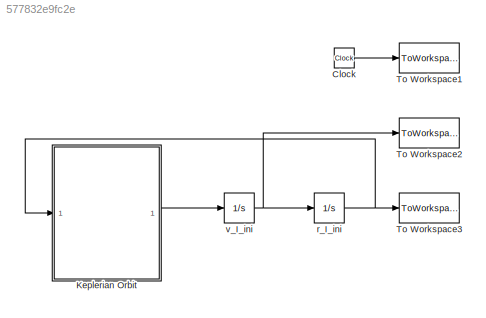
MODEL slx_577832e9fc2e
KIND model
CONFIG AbsTol = auto
CONFIG EnableMultiTasking = on
CONFIG FixedStep = auto
CONFIG MaxStep = 0.1
CONFIG MinStep = auto
CONFIG RelTol = 1e-3
CONFIG SampleTimeConstraint = Unconstrained
CONFIG SolverName = ode45
CONFIG StartTime = 0.0
CONFIG StopTime = T
BLOCK [Clock] Clock
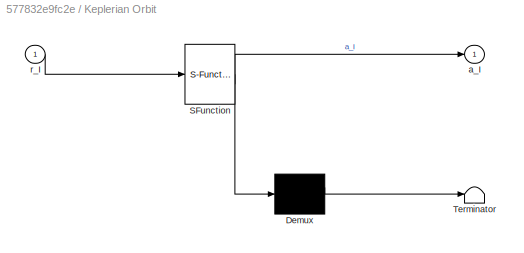
BLOCK [SubSystem] Keplerian Orbit
  ErrorFcn = Stateflow.Translate.translate
  PermitHierarchicalResolution = ExplicitOnly
  SFBlockType = MATLAB Function
  TreatAsAtomicUnit = on
BLOCK [Demux] Keplerian Orbit/ Demux 
  Outputs = 1
BLOCK [S-Function] Keplerian Orbit/ SFunction 
  EnableBusSupport = on
  FunctionName = sf_sfun
  Parameters = mu
  PortCounts = [1 2]
  SFcnIsStateOwnerBlock = off
  SFunctionDeploymentMode = off
  Tag = Stateflow S-Function 2
BLOCK [Terminator] Keplerian Orbit/ Terminator 
BLOCK [Outport] Keplerian Orbit/a_I
BLOCK [Inport] Keplerian Orbit/r_I
BLOCK [ToWorkspace] To Workspace1
  MaxDataPoints = inf
  SampleTime = -1
  VariableName = t
BLOCK [ToWorkspace] To Workspace2
  MaxDataPoints = inf
  SampleTime = -1
  VariableName = v_I
BLOCK [ToWorkspace] To Workspace3
  MaxDataPoints = inf
  SampleTime = -1
  VariableName = r_I
BLOCK [Integrator] r_I_ini
  InitialCondition = r_I_ini
BLOCK [Integrator] v_I_ini
  InitialCondition = v_I_ini
LINE Clock:1 -> To Workspace1:1
LINE Keplerian Orbit:1 -> v_I_ini:1
NET r_I_ini:1 -> Keplerian Orbit:1, To Workspace3:1
NET v_I_ini:1 -> To Workspace2:1, r_I_ini:1
note: NET lines group one-source signal fan-out (src -> all destinations, sorted); 1:1 wires keep LINE
CHART Keplerian Orbit states=1 transitions=1
  STATE_LABEL 'eML_blk_kernel()'
  STATE_LABEL 'SCRIPT:\nfunction a_I  =  TBP(r_I, mu)\n\n% ---------------------------------------------------------------\n% TBP\n% ---------------------------------------------------------------\n% Description:\n% Compute the spacecraft acceleration in ECI, using the two-body\n% equation of motion.\n% ---------------------------------------------------------------\n% Inputs:\n% r_I => components of r in ECI (3 x 1 matrix...<+572ch>'
CHART  states=0 transitions=0
